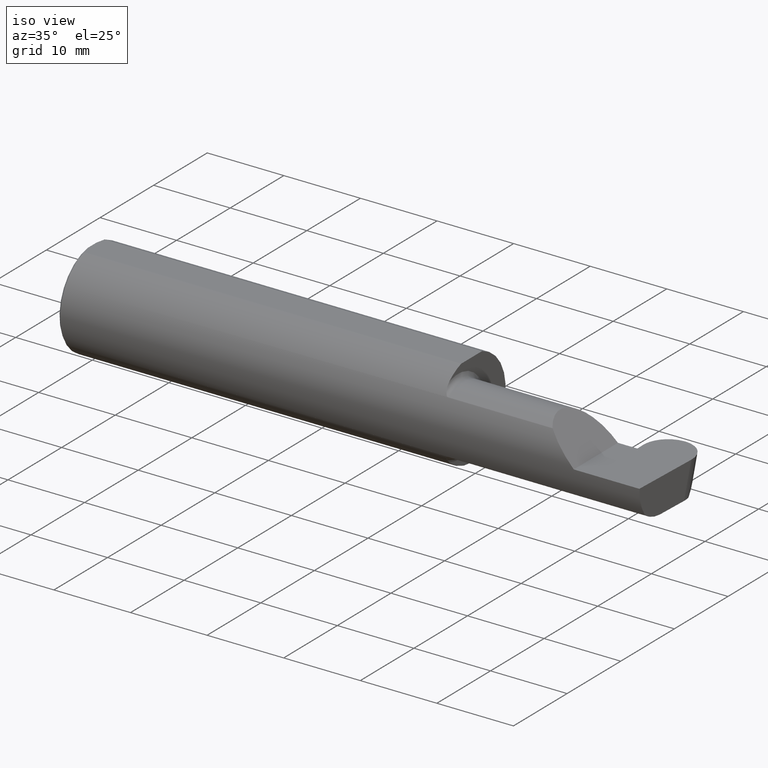
[diagram: clean part render]
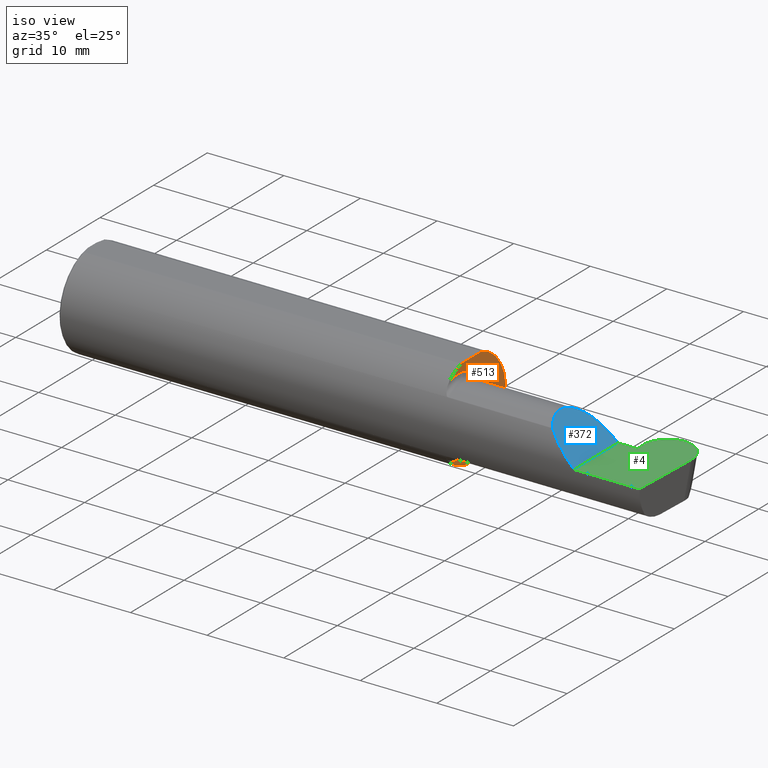
[diagram: same view with three faces highlighted in distinct colors, each labeled with its STEP entity id]
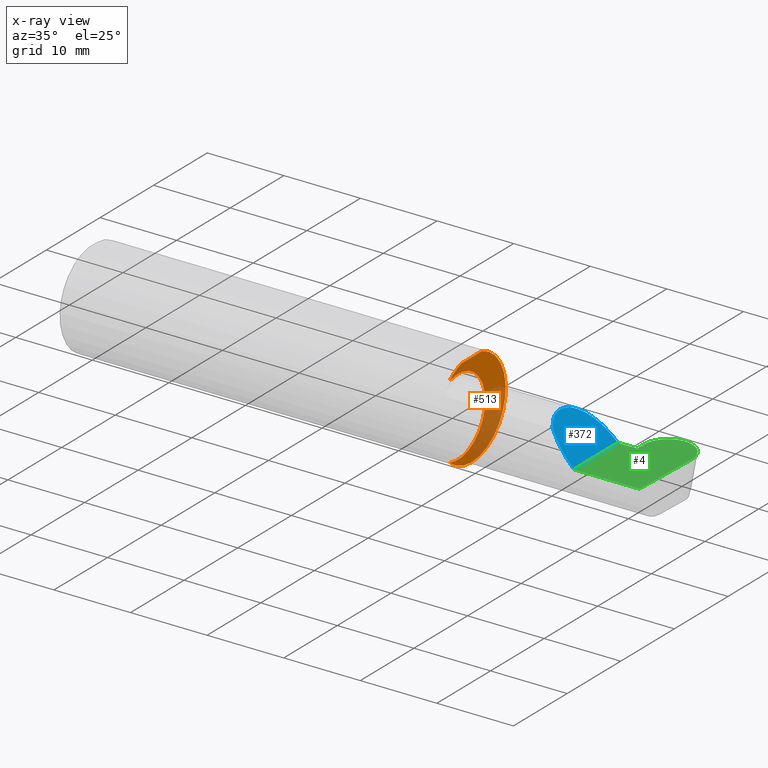
[diagram: x-ray of the same camera — body ghosted, the three highlighted faces saturated]
A machine part, iso view with three faces highlighted in distinct colors.
The next image is the same camera in x-ray (body ghosted, the three faces saturated) — at least one of them is partly hidden behind the body in this view.
Their STEP definitions:

[orange] entity #513 — the highlighted planar face has unit normal (1, 0, 0).
#2 = AXIS2_PLACEMENT_3D ( 'NONE', #204, #495, #440 ) ;
#10 = VERTEX_POINT ( 'NONE', #108 ) ;
#66 = EDGE_CURVE ( 'NONE', #451, #92, #407, .T. ) ;
#90 = CARTESIAN_POINT ( 'NONE',  ( 1.950000000000000178, -0.1008500000000000368, 0.000000000000000000 ) ) ;
#92 = VERTEX_POINT ( 'NONE', #638 ) ;
#108 = CARTESIAN_POINT ( 'NONE',  ( 1.950000000000000178, -0.1616050818046604609, 0.1905487340154979614 ) ) ;
#129 = ORIENTED_EDGE ( 'NONE', *, *, #389, .T. ) ;
#151 = DIRECTION ( 'NONE',  ( -4.274981070833214909E-17, 1.000000000000000000, 0.000000000000000000 ) ) ;
#169 = VERTEX_POINT ( 'NONE', #291 ) ;
#181 = CIRCLE ( 'NONE', #2, 0.2498499999999999888 ) ;
#189 = CARTESIAN_POINT ( 'NONE',  ( 1.950000000000000178, 0.2498499999999997945, 0.2378499999999998671 ) ) ;
#204 = CARTESIAN_POINT ( 'NONE',  ( 1.950000000000000178, 0.000000000000000000, 0.000000000000000000 ) ) ;
#207 = PLANE ( 'NONE',  #341 ) ;
#231 = EDGE_CURVE ( 'NONE', #169, #92, #181, .T. ) ;
#262 = AXIS2_PLACEMENT_3D ( 'NONE', #275, #631, #743 ) ;
#275 = CARTESIAN_POINT ( 'NONE',  ( 1.950000000000000178, 0.000000000000000000, 0.000000000000000000 ) ) ;
#291 = CARTESIAN_POINT ( 'NONE',  ( 1.950000000000000178, -0.1616050818046604609, -0.1905487340154979614 ) ) ;
#314 = ORIENTED_EDGE ( 'NONE', *, *, #231, .T. ) ;
#341 = AXIS2_PLACEMENT_3D ( 'NONE', #672, #439, #151 ) ;
#385 = DIRECTION ( 'NONE',  ( 0.000000000000000000, -1.000000000000000000, 0.000000000000000000 ) ) ;
#389 = EDGE_CURVE ( 'NONE', #451, #10, #583, .T. ) ;
#407 = LINE ( 'NONE', #189, #426 ) ;
#426 = VECTOR ( 'NONE', #700, 39.37007874015748143 ) ;
#439 = DIRECTION ( 'NONE',  ( 1.000000000000000000, 4.274981070833214909E-17, 0.000000000000000000 ) ) ;
#440 = DIRECTION ( 'NONE',  ( 0.000000000000000000, 1.000000000000000000, 0.000000000000000000 ) ) ;
#451 = VERTEX_POINT ( 'NONE', #723 ) ;
#462 = CIRCLE ( 'NONE', #530, 0.1999999999999999556 ) ;
#495 = DIRECTION ( 'NONE',  ( 1.000000000000000000, 4.274981070833214909E-17, 0.000000000000000000 ) ) ;
#509 = EDGE_CURVE ( 'NONE', #10, #169, #462, .T. ) ;
#513 = ADVANCED_FACE ( 'NONE', ( #542 ), #207, .T. ) ;
#530 = AXIS2_PLACEMENT_3D ( 'NONE', #90, #617, #385 ) ;
#542 = FACE_OUTER_BOUND ( 'NONE', #745, .T. ) ;
#583 = CIRCLE ( 'NONE', #262, 0.2498499999999999888 ) ;
#591 = ORIENTED_EDGE ( 'NONE', *, *, #66, .F. ) ;
#599 = ORIENTED_EDGE ( 'NONE', *, *, #509, .T. ) ;
#617 = DIRECTION ( 'NONE',  ( -1.000000000000000000, -4.274981070833214909E-17, -0.000000000000000000 ) ) ;
#631 = DIRECTION ( 'NONE',  ( 1.000000000000000000, 4.274981070833214909E-17, 0.000000000000000000 ) ) ;
#638 = CARTESIAN_POINT ( 'NONE',  ( 1.950000000000000178, 0.07650098038587520299, 0.2378499999999998671 ) ) ;
#672 = CARTESIAN_POINT ( 'NONE',  ( 1.950000000000000178, 0.2498499999999999055, 0.000000000000000000 ) ) ;
#700 = DIRECTION ( 'NONE',  ( -4.274981070833214909E-17, 1.000000000000000000, 0.000000000000000000 ) ) ;
#723 = CARTESIAN_POINT ( 'NONE',  ( 1.950000000000000178, -0.07650098038587527238, 0.2378499999999998671 ) ) ;
#743 = DIRECTION ( 'NONE',  ( 0.000000000000000000, 1.000000000000000000, 0.000000000000000000 ) ) ;
#745 = EDGE_LOOP ( 'NONE', ( #314, #591, #129, #599 ) ) ;

[blue] entity #372 — the highlighted planar face has unit normal (-0.7071, 0, -0.7071).
#22 = EDGE_LOOP ( 'NONE', ( #609, #293, #89 ) ) ;
#30 = CARTESIAN_POINT ( 'NONE',  ( 2.650000000000000355, 0.07414999999999997982, 1.285879139104719253E-16 ) ) ;
#89 = ORIENTED_EDGE ( 'NONE', *, *, #179, .T. ) ;
#105 = PLANE ( 'NONE',  #486 ) ;
#127 = VERTEX_POINT ( 'NONE', #470 ) ;
#130 = DIRECTION ( 'NONE',  ( -0.000000000000000000, 1.000000000000000000, -0.000000000000000000 ) ) ;
#179 = EDGE_CURVE ( 'NONE', #127, #578, #288, .T. ) ;
#185 =( BOUNDED_CURVE ( )  B_SPLINE_CURVE ( 3, ( #260, #597, #724, #669 ),
 .UNSPECIFIED., .F., .T. ) 
 B_SPLINE_CURVE_WITH_KNOTS ( ( 4, 4 ),
 ( 4.712388980384689674, 5.298966915116345433 ),
 .UNSPECIFIED. ) 
 CURVE ( )  GEOMETRIC_REPRESENTATION_ITEM ( )  RATIONAL_B_SPLINE_CURVE ( ( 1.000000000000000000, 0.9715321379117540790, 0.9715321379117540790, 1.000000000000000000 ) ) 
 REPRESENTATION_ITEM ( '' )  );
#224 = EDGE_CURVE ( 'NONE', #127, #344, #185, .T. ) ;
#260 = CARTESIAN_POINT ( 'NONE',  ( 2.650000000000000355, -0.2498499999999999610, 4.286263797015729199E-17 ) ) ;
#264 = CARTESIAN_POINT ( 'NONE',  ( 2.511704467739032332, -0.2080850024789293040, 0.1382955322609664139 ) ) ;
#270 = DIRECTION ( 'NONE',  ( -0.7071067811865511255, 0.000000000000000000, 0.7071067811865439090 ) ) ;
#288 = LINE ( 'NONE', #355, #703 ) ;
#293 = ORIENTED_EDGE ( 'NONE', *, *, #224, .F. ) ;
#317 = CARTESIAN_POINT ( 'NONE',  ( 2.409263745716141880, -0.07597241004310721635, 0.2407362542838555608 ) ) ;
#332 = FACE_OUTER_BOUND ( 'NONE', #22, .T. ) ;
#344 = VERTEX_POINT ( 'NONE', #264 ) ;
#355 = CARTESIAN_POINT ( 'NONE',  ( 2.650000000000000355, -0.2500000000000000555, 4.286263797015729199E-17 ) ) ;
#358 =( BOUNDED_CURVE ( )  B_SPLINE_CURVE ( 3, ( #604, #317, #614, #30 ),
 .UNSPECIFIED., .F., .T. ) 
 B_SPLINE_CURVE_WITH_KNOTS ( ( 4, 4 ),
 ( 5.623622464215678463, 7.853981633974482790 ),
 .UNSPECIFIED. ) 
 CURVE ( )  GEOMETRIC_REPRESENTATION_ITEM ( )  RATIONAL_B_SPLINE_CURVE ( ( 1.000000000000000000, 0.6266774836123988335, 0.6266774836123988335, 1.000000000000000000 ) ) 
 REPRESENTATION_ITEM ( '' )  );
#372 = ADVANCED_FACE ( 'NONE', ( #332 ), #105, .F. ) ;
#456 = EDGE_CURVE ( 'NONE', #344, #578, #358, .T. ) ;
#470 = CARTESIAN_POINT ( 'NONE',  ( 2.650000000000000355, -0.2498499999999999610, 4.286263797015729199E-17 ) ) ;
#486 = AXIS2_PLACEMENT_3D ( 'NONE', #504, #731, #270 ) ;
#504 = CARTESIAN_POINT ( 'NONE',  ( 2.650000000000000355, -0.2500000000000000555, 4.286263797015729199E-17 ) ) ;
#578 = VERTEX_POINT ( 'NONE', #696 ) ;
#597 = CARTESIAN_POINT ( 'NONE',  ( 2.600434159100402987, -0.2498499999999999610, 0.04956584089959683442 ) ) ;
#604 = CARTESIAN_POINT ( 'NONE',  ( 2.511704467739032332, -0.2080850024789293040, 0.1382955322609664139 ) ) ;
#609 = ORIENTED_EDGE ( 'NONE', *, *, #456, .F. ) ;
#614 = CARTESIAN_POINT ( 'NONE',  ( 2.482823929317964584, 0.07414999999999999369, 0.1671760706820341613 ) ) ;
#669 = CARTESIAN_POINT ( 'NONE',  ( 2.511704467739032332, -0.2080850024789293040, 0.1382955322609664139 ) ) ;
#696 = CARTESIAN_POINT ( 'NONE',  ( 2.650000000000000355, 0.07414999999999997982, 1.285879139104719253E-16 ) ) ;
#703 = VECTOR ( 'NONE', #130, 39.37007874015748143 ) ;
#724 = CARTESIAN_POINT ( 'NONE',  ( 2.552984868485332459, -0.2355204011147992993, 0.09701513151466721607 ) ) ;
#731 = DIRECTION ( 'NONE',  ( -0.7071067811865439090, 0.000000000000000000, -0.7071067811865511255 ) ) ;

[green] entity #4 — the highlighted planar face has unit normal (-0, 0, -1).
#1 = EDGE_LOOP ( 'NONE', ( #122, #570, #582, #646, #242, #265, #209, #213, #458, #60 ) ) ;
#4 = ADVANCED_FACE ( 'NONE', ( #576 ), #54, .F. ) ;
#16 = CARTESIAN_POINT ( 'NONE',  ( 4.499279347985562423E-32, -0.2498499999999999610, 3.673940397442054938E-16 ) ) ;
#38 = VECTOR ( 'NONE', #363, 39.37007874015748143 ) ;
#51 = VECTOR ( 'NONE', #436, 39.37007874015748143 ) ;
#52 = CARTESIAN_POINT ( 'NONE',  ( 3.000000000000000444, -0.2500000000000000555, 0.000000000000000000 ) ) ;
#54 = PLANE ( 'NONE',  #364 ) ;
#60 = ORIENTED_EDGE ( 'NONE', *, *, #608, .T. ) ;
#64 = CARTESIAN_POINT ( 'NONE',  ( 2.748789500000000441, 0.1196039745734777532, 3.076441347372056086E-17 ) ) ;
#80 = EDGE_CURVE ( 'NONE', #744, #127, #647, .T. ) ;
#94 = EDGE_CURVE ( 'NONE', #496, #633, #480, .T. ) ;
#100 = VECTOR ( 'NONE', #521, 39.37007874015748143 ) ;
#110 = CARTESIAN_POINT ( 'NONE',  ( 2.750367999175829414, 0.07414999999999984104, 0.000000000000000000 ) ) ;
#115 = DIRECTION ( 'NONE',  ( -1.224646799147351975E-16, 0.000000000000000000, -1.000000000000000000 ) ) ;
#118 = CARTESIAN_POINT ( 'NONE',  ( 3.002511784637379222, 0.1912804032740405558, -7.160714913043396685E-18 ) ) ;
#122 = ORIENTED_EDGE ( 'NONE', *, *, #300, .F. ) ;
#127 = VERTEX_POINT ( 'NONE', #470 ) ;
#130 = DIRECTION ( 'NONE',  ( -0.000000000000000000, 1.000000000000000000, -0.000000000000000000 ) ) ;
#133 = VERTEX_POINT ( 'NONE', #693 ) ;
#164 = CARTESIAN_POINT ( 'NONE',  ( 2.748789500000000441, 0.1193523022059226057, 0.000000000000000000 ) ) ;
#175 = CARTESIAN_POINT ( 'NONE',  ( 2.999793206199442785, 0.1134305025558126345, 0.000000000000000000 ) ) ;
#176 =( BOUNDED_CURVE ( )  B_SPLINE_CURVE ( 3, ( #178, #733, #233, #64 ),
 .UNSPECIFIED., .F., .T. ) 
 B_SPLINE_CURVE_WITH_KNOTS ( ( 4, 4 ),
 ( -8.881784197001252323E-16, 1.570796326794896780 ),
 .UNSPECIFIED. ) 
 CURVE ( )  GEOMETRIC_REPRESENTATION_ITEM ( )  RATIONAL_B_SPLINE_CURVE ( ( 1.000000000000000000, 0.8047378541243646044, 0.8047378541243646044, 1.000000000000000000 ) ) 
 REPRESENTATION_ITEM ( '' )  );
#178 = CARTESIAN_POINT ( 'NONE',  ( 2.871989500000000195, 0.2471499999999999808, 0.000000000000000000 ) ) ;
#179 = EDGE_CURVE ( 'NONE', #127, #578, #288, .T. ) ;
#209 = ORIENTED_EDGE ( 'NONE', *, *, #179, .F. ) ;
#213 = ORIENTED_EDGE ( 'NONE', *, *, #80, .F. ) ;
#215 = CARTESIAN_POINT ( 'NONE',  ( 2.748789500000000441, 0.1196039745734777532, 3.076441347372056086E-17 ) ) ;
#218 = VECTOR ( 'NONE', #457, 39.37007874015748143 ) ;
#222 = CARTESIAN_POINT ( 'NONE',  ( 2.748789500000000441, -0.2500000000000000555, 3.076441347372055469E-17 ) ) ;
#233 = CARTESIAN_POINT ( 'NONE',  ( 2.748789500000000441, 0.1943187064415508314, 3.216169852589703280E-17 ) ) ;
#240 = CARTESIAN_POINT ( 'NONE',  ( 2.748866015324560319, 0.1171611899918090366, 0.000000000000000000 ) ) ;
#242 = ORIENTED_EDGE ( 'NONE', *, *, #376, .F. ) ;
#255 = CARTESIAN_POINT ( 'NONE',  ( 2.750367999175829414, 0.07414999999999984104, 0.000000000000000000 ) ) ;
#265 = ORIENTED_EDGE ( 'NONE', *, *, #565, .F. ) ;
#288 = LINE ( 'NONE', #355, #703 ) ;
#300 = EDGE_CURVE ( 'NONE', #133, #512, #499, .T. ) ;
#302 =( BOUNDED_CURVE ( )  B_SPLINE_CURVE ( 3, ( #348, #118, #353, #701 ),
 .UNSPECIFIED., .F., .F. ) 
 B_SPLINE_CURVE_WITH_KNOTS ( ( 4, 4 ),
 ( 1.637964922114649058, 3.237953570749844356 ),
 .UNSPECIFIED. ) 
 CURVE ( )  GEOMETRIC_REPRESENTATION_ITEM ( )  RATIONAL_B_SPLINE_CURVE ( ( 1.000000000000000000, 0.7978071872141900833, 0.7978071872141900833, 1.000000000000000000 ) ) 
 REPRESENTATION_ITEM ( '' )  );
#336 = LINE ( 'NONE', #110, #218 ) ;
#337 = VERTEX_POINT ( 'NONE', #215 ) ;
#348 = CARTESIAN_POINT ( 'NONE',  ( 2.999793206199442785, 0.1134305025558126345, 0.000000000000000000 ) ) ;
#353 = CARTESIAN_POINT ( 'NONE',  ( 2.950455787437228139, 0.2471500000000003971, -7.856938782845208821E-19 ) ) ;
#355 = CARTESIAN_POINT ( 'NONE',  ( 2.650000000000000355, -0.2500000000000000555, 4.286263797015729199E-17 ) ) ;
#360 = EDGE_CURVE ( 'NONE', #721, #744, #627, .T. ) ;
#363 = DIRECTION ( 'NONE',  ( -0.03489949670249486990, 0.9993908270190959842, -0.000000000000000000 ) ) ;
#364 = AXIS2_PLACEMENT_3D ( 'NONE', #52, #115, #567 ) ;
#365 = VECTOR ( 'NONE', #658, 39.37007874015748143 ) ;
#376 = EDGE_CURVE ( 'NONE', #593, #496, #336, .T. ) ;
#398 = EDGE_CURVE ( 'NONE', #633, #337, #738, .T. ) ;
#401 = DIRECTION ( 'NONE',  ( -0.03489949670249543195, -0.9993908270190959842, 0.000000000000000000 ) ) ;
#412 = VECTOR ( 'NONE', #401, 39.37007874015748143 ) ;
#436 = DIRECTION ( 'NONE',  ( 1.000000000000000000, -0.000000000000000000, -0.000000000000000000 ) ) ;
#457 = DIRECTION ( 'NONE',  ( 1.000000000000000000, -0.000000000000000000, -0.000000000000000000 ) ) ;
#458 = ORIENTED_EDGE ( 'NONE', *, *, #360, .F. ) ;
#470 = CARTESIAN_POINT ( 'NONE',  ( 2.650000000000000355, -0.2498499999999999610, 4.286263797015729199E-17 ) ) ;
#471 = CARTESIAN_POINT ( 'NONE',  ( 2.739326706053758276, 0.07414999999999984104, 0.000000000000000000 ) ) ;
#475 = VECTOR ( 'NONE', #678, 39.37007874015748143 ) ;
#480 = LINE ( 'NONE', #240, #38 ) ;
#490 = CARTESIAN_POINT ( 'NONE',  ( 1.950000000000000178, 0.07414999999999995206, 1.285879139104719253E-16 ) ) ;
#496 = VERTEX_POINT ( 'NONE', #255 ) ;
#499 = LINE ( 'NONE', #655, #51 ) ;
#507 = CARTESIAN_POINT ( 'NONE',  ( 2.999923484675441010, 0.1171611899918090643, 0.000000000000000000 ) ) ;
#512 = VERTEX_POINT ( 'NONE', #677 ) ;
#521 = DIRECTION ( 'NONE',  ( -1.000000000000000000, -0.000000000000000000, -0.000000000000000000 ) ) ;
#564 = LINE ( 'NONE', #490, #365 ) ;
#565 = EDGE_CURVE ( 'NONE', #578, #593, #564, .T. ) ;
#567 = DIRECTION ( 'NONE',  ( -1.000000000000000000, 0.000000000000000000, 1.224646799147351975E-16 ) ) ;
#570 = ORIENTED_EDGE ( 'NONE', *, *, #663, .T. ) ;
#576 = FACE_OUTER_BOUND ( 'NONE', #1, .T. ) ;
#578 = VERTEX_POINT ( 'NONE', #696 ) ;
#582 = ORIENTED_EDGE ( 'NONE', *, *, #398, .F. ) ;
#593 = VERTEX_POINT ( 'NONE', #471 ) ;
#607 = CARTESIAN_POINT ( 'NONE',  ( 2.987107171508847081, -0.2498499999999999888, 0.000000000000000000 ) ) ;
#608 = EDGE_CURVE ( 'NONE', #721, #512, #302, .T. ) ;
#627 = LINE ( 'NONE', #507, #412 ) ;
#633 = VERTEX_POINT ( 'NONE', #164 ) ;
#646 = ORIENTED_EDGE ( 'NONE', *, *, #94, .F. ) ;
#647 = LINE ( 'NONE', #16, #100 ) ;
#655 = CARTESIAN_POINT ( 'NONE',  ( -0.002039370078740339320, 0.2471499999999999808, 0.000000000000000000 ) ) ;
#658 = DIRECTION ( 'NONE',  ( 1.000000000000000000, 4.274981070833214909E-17, 0.000000000000000000 ) ) ;
#663 = EDGE_CURVE ( 'NONE', #133, #337, #176, .T. ) ;
#677 = CARTESIAN_POINT ( 'NONE',  ( 2.875201260087795863, 0.2471499999999999808, 0.000000000000000000 ) ) ;
#678 = DIRECTION ( 'NONE',  ( -4.274981070833215525E-17, 1.000000000000000000, 5.235341884811416118E-33 ) ) ;
#693 = CARTESIAN_POINT ( 'NONE',  ( 2.871989500000000195, 0.2471499999999999808, 0.000000000000000000 ) ) ;
#696 = CARTESIAN_POINT ( 'NONE',  ( 2.650000000000000355, 0.07414999999999997982, 1.285879139104719253E-16 ) ) ;
#701 = CARTESIAN_POINT ( 'NONE',  ( 2.875201260087795863, 0.2471499999999999808, 0.000000000000000000 ) ) ;
#703 = VECTOR ( 'NONE', #130, 39.37007874015748143 ) ;
#721 = VERTEX_POINT ( 'NONE', #175 ) ;
#733 = CARTESIAN_POINT ( 'NONE',  ( 2.799820610884365735, 0.2471499999999999808, 2.591218986574986251E-17 ) ) ;
#738 = LINE ( 'NONE', #222, #475 ) ;
#744 = VERTEX_POINT ( 'NONE', #607 ) ;